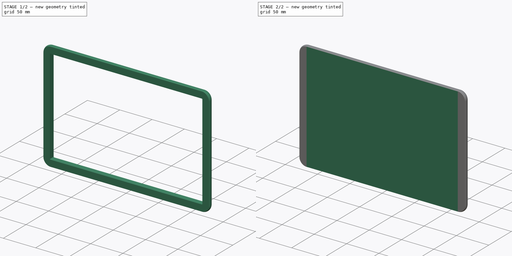
[diagram: build sequence overview — one tinted view per stage of 2, left to right]
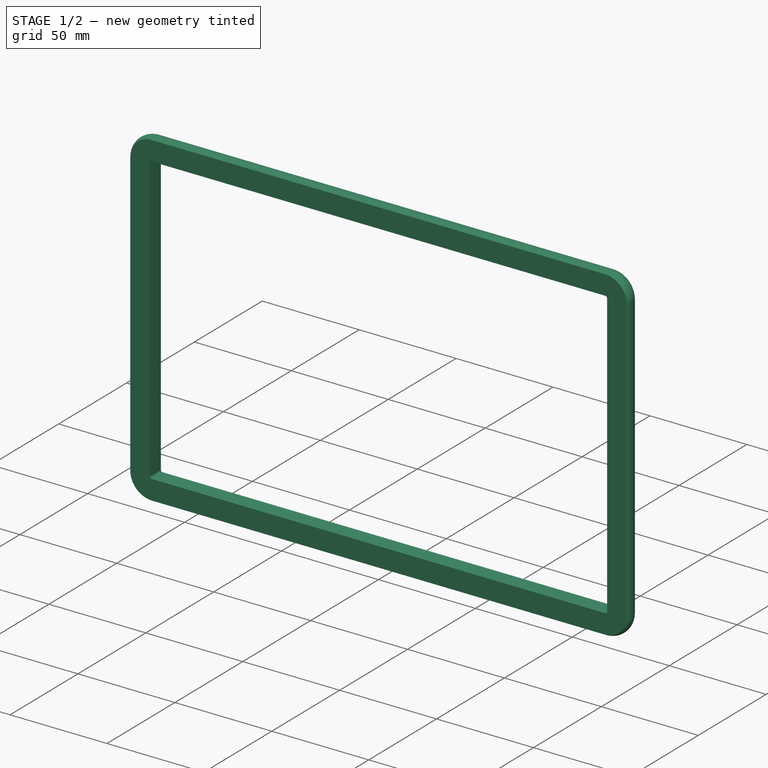
[diagram: stage 1 of 2 — iso view after this stage's code; geometry added in this stage tinted green]
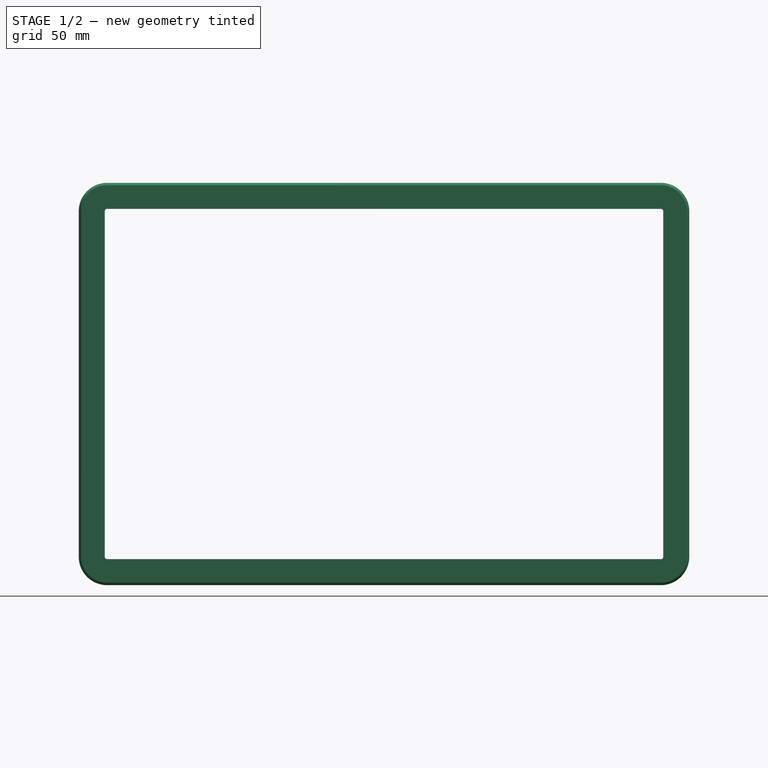
[diagram: stage 1 of 2 — front view after this stage's code; geometry added in this stage tinted green]
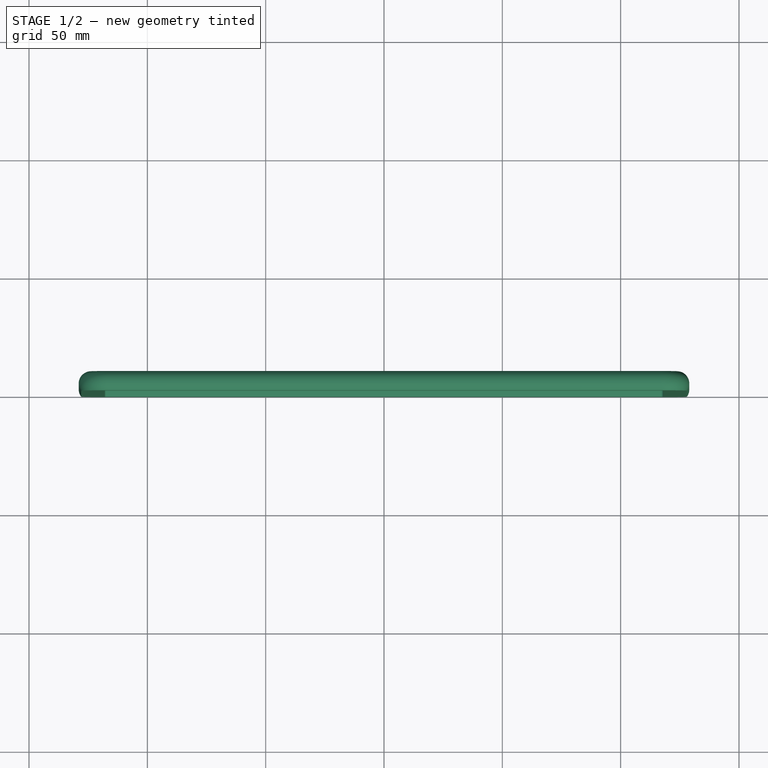
[diagram: stage 1 of 2 — top view after this stage's code; geometry added in this stage tinted green]
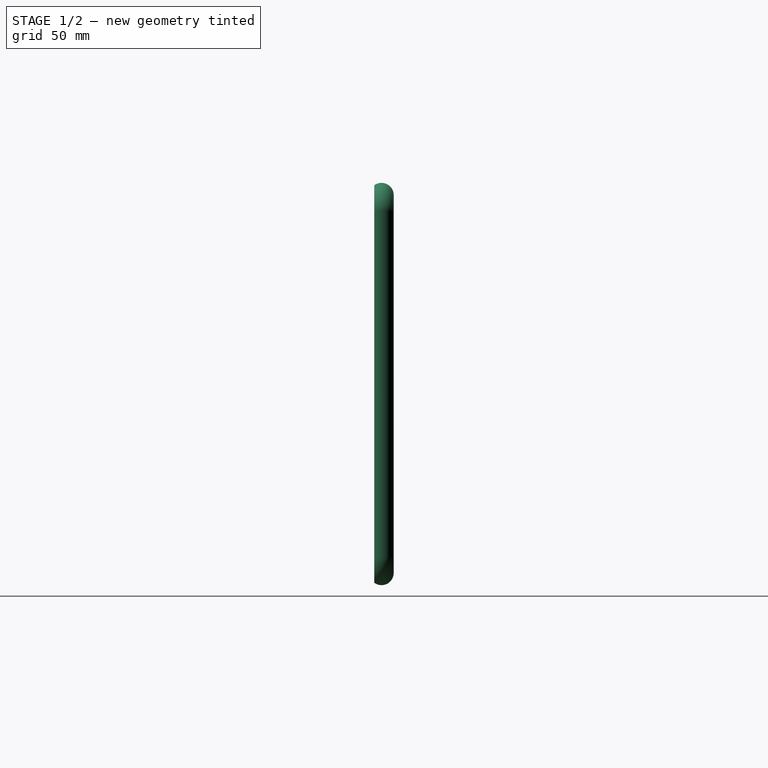
[diagram: stage 1 of 2 — right view after this stage's code; geometry added in this stage tinted green]
FCSTD DOCUMENT  (FreeCAD 0.21R33668 +7 (Git))
Label: pixel-tablet
License: All rights reserved
LicenseURL: http://en.wikipedia.org/wiki/All_rights_reserved
objects: Sketcher::SketchObject×3, PartDesign::Mirrored×2, PartDesign::Body×2, PartDesign::AdditivePipe×1, PartDesign::MultiTransform×1, PartDesign::SubShapeBinder×1, PartDesign::Pad×1, PartDesign::Pocket×1
note: 15 computed .brp shape members not serialized (recipe doc carries the construction recipe); baked Part::Feature solids carry a one-line shape summary decoded from their .brp

FEATURE [Sketcher::SketchObject] Sketch001
  FullyConstrained = true
  MapMode = 5
  Placement = pos=(0,0,0) rot=(1,0,0;1.5708rad)
  Support = -> [XZ_Plane001]
  sketch-geometry (5):
    g0: LineSegment StartX=129 StartY=0 StartZ=0 EndX=129 EndY=73 EndZ=0
    g1: LineSegment StartX=117 StartY=85 StartZ=0 EndX=0 EndY=85 EndZ=0
    g2: ArcOfCircle CenterX=117 CenterY=73 CenterZ=0 NormalX=0 NormalY=0 NormalZ=1 AngleXU=0 Radius=12 StartAngle=0 EndAngle=1.5708
    g3: LineSegment StartX=0 StartY=85 StartZ=0 EndX=0 EndY=0 EndZ=0
    g4: LineSegment StartX=0 StartY=0 StartZ=0 EndX=129 EndY=0 EndZ=0
  constraints (13):
    c: Horizontal(g1)
    c: Vertical(g0)
    c: DistanceX(g-1,g0) = 129
    c: DistanceY(g-1,g1) = 85
    c: Tangent(g1,g2) = -1.5708
    c: Tangent(g0,g2) = -1.5708
    c: Radius(g2) = 12
    c: PointOnObject(g1,g-2)
    c: PointOnObject(g0,g-1)
    c: Coincident(g3,g1)
    c: Coincident(g3,g-1)
    c: Coincident(g4,g3)
    c: Coincident(g4,g0)
FEATURE [Sketcher::SketchObject] Sketch002
  ExternalGeometry = -> [Sketch001]
  FullyConstrained = false
  MapMode = 5
  Support = -> [XY_Plane001]
  sketch-geometry (5):
    g0: ArcOfCircle CenterX=123.85 CenterY=3.04969 CenterZ=0 NormalX=0 NormalY=0 NormalZ=1 AngleXU=0 Radius=5.15031 StartAngle=5.64948 EndAngle=7.85398
    g1: LineSegment StartX=128 StartY=0 StartZ=0 EndX=118 EndY=0 EndZ=0
    g2: LineSegment StartX=118 StartY=0 StartZ=0 EndX=118 EndY=8.2 EndZ=0
    g3: LineSegment StartX=118 StartY=8.2 StartZ=0 EndX=123.85 EndY=8.2 EndZ=0
    g4: LineSegment StartX=129 StartY=8.1e-15 StartZ=0 EndX=129 EndY=8.90351 EndZ=0
  constraints (14):
    c: PointOnObject(g0,g-1)
    c: Coincident(g1,g0)
    c: PointOnObject(g1,g-1)
    c: Coincident(g2,g1)
    c: Vertical(g2)
    c: Coincident(g3,g2)
    c: Horizontal(g3)
    c: Coincident(g4,g-3)
    c: Vertical(g4)
    c: Tangent(g0,g4)
    c: Tangent(g3,g0) = 1.5708
    c: DistanceX(g0,g4) = 1
    c: DistanceY(g0,g0) = 8.2
    c: DistanceX(g1,g1) = 10
FEATURE [PartDesign::AdditivePipe] AdditivePipe
  AuxilleryCurvelinear = true
  AuxillerySpineTangent = false
  Binormal = (0,0,0)
  Mode = 0
  Profile = -> Sketch002
  Spine = -> Sketch001 [Edge1,Edge2,Edge3]
  SpineTangent = false
  Transformation = 0
  Transition = 0
FEATURE [PartDesign::Mirrored] Mirrored001
  MirrorPlane = -> AdditivePipe [Face11]
FEATURE [PartDesign::Mirrored] Mirrored002
  MirrorPlane = -> AdditivePipe [Face1]
FEATURE [PartDesign::MultiTransform] MultiTransform
  BaseFeature = -> AdditivePipe
  Originals = -> [AdditivePipe]
  Refine = true
  Transformations = -> [Mirrored001,Mirrored002]
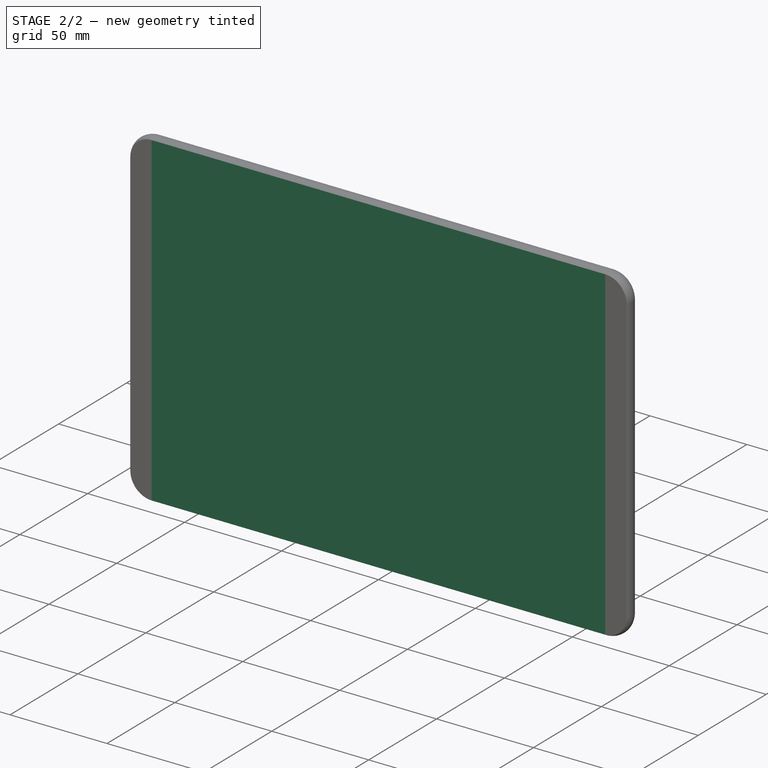
[diagram: stage 2 of 2 — iso view after this stage's code; geometry added in this stage tinted green]
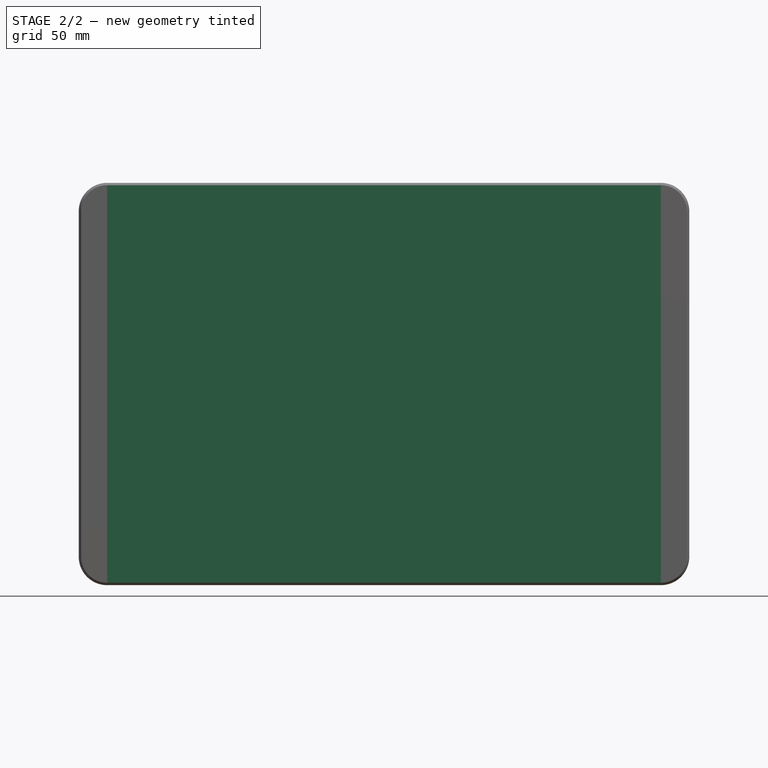
[diagram: stage 2 of 2 — front view after this stage's code; geometry added in this stage tinted green]
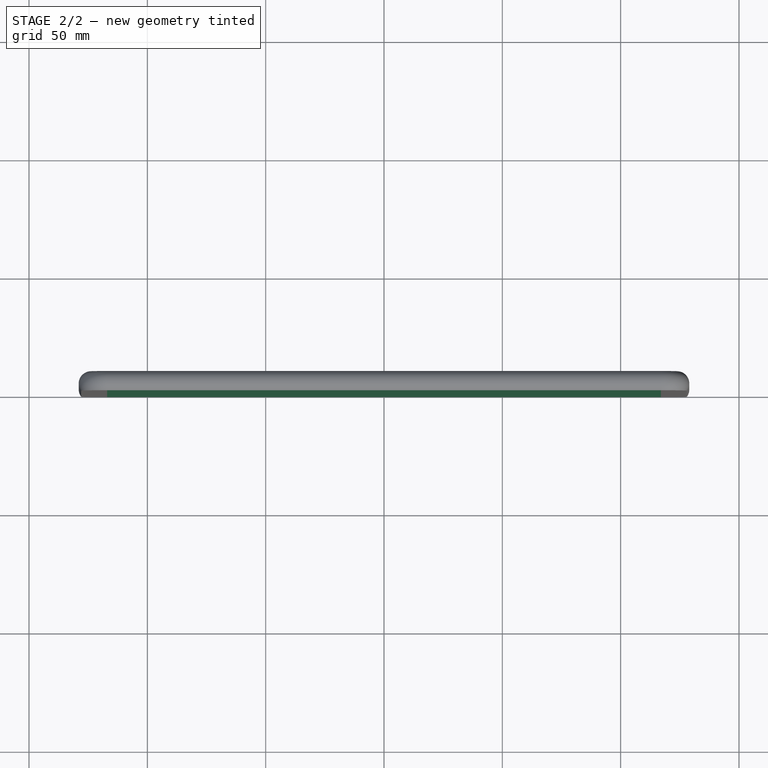
[diagram: stage 2 of 2 — top view after this stage's code; geometry added in this stage tinted green]
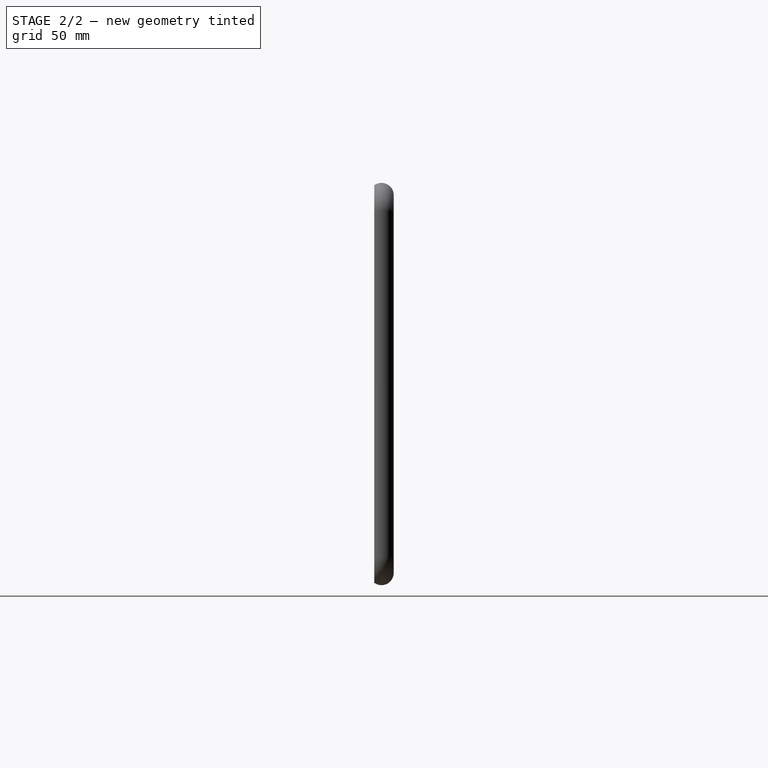
[diagram: stage 2 of 2 — right view after this stage's code; geometry added in this stage tinted green]
FEATURE [PartDesign::SubShapeBinder] Binder
  BindCopyOnChange = 0
  BindMode = 0
  ClaimChildren = false
  Context = -> Body001 [Binder.]
  Fuse = false
  MakeFace = true
  OffsetFill = false
  OffsetIntersection = false
  OffsetJoinType = 0
  OffsetOpenResult = false
  PartialLoad = false
  Relative = true
  Support = -> [MultiTransform[Edge48,Edge29,Edge47,Edge32,Edge46,Edge35,Edge45,Edge38]]
  _Version = 2
FEATURE [PartDesign::Pad] Pad001
  BaseFeature = -> MultiTransform
  Direction = (-2e-16,1,0)
  Length = 10
  Length2 = 10
  Profile = -> Binder [Face1]
  Refine = true
  Reversed = true
  Type = 3
  UpToFace = -> MultiTransform [Face2]
FEATURE [Sketcher::SketchObject] Sketch003
  ExternalGeometry = -> [Pad001]
  FullyConstrained = true
  MapMode = 5
  Placement = pos=(-1.8e-15,8.2,0) rot=(0,0.707107,0.707107;3.14159rad)
  Support = -> [Pad001]
  sketch-geometry (7):
    g0: Circle CenterX=-7.75 CenterY=-60 CenterZ=0 NormalX=0 NormalY=0 NormalZ=1 AngleXU=0 Radius=1
    g1: Circle CenterX=-2.58333 CenterY=-60 CenterZ=0 NormalX=0 NormalY=0 NormalZ=1 AngleXU=0 Radius=1
    g2: Circle CenterX=2.58333 CenterY=-60 CenterZ=0 NormalX=0 NormalY=0 NormalZ=1 AngleXU=0 Radius=1
    g3: Circle CenterX=7.75 CenterY=-60 CenterZ=0 NormalX=0 NormalY=0 NormalZ=1 AngleXU=0 Radius=1
    g4: LineSegment StartX=-7.75 StartY=-60 StartZ=0 EndX=-2.58333 EndY=-60 EndZ=0
    g5: LineSegment StartX=-2.58333 StartY=-60 StartZ=0 EndX=2.58333 EndY=-60 EndZ=0
    g6: LineSegment StartX=2.58333 StartY=-60 StartZ=0 EndX=7.75 EndY=-60 EndZ=0
  constraints (17):
    c: Coincident(g4,g0)
    c: Coincident(g4,g1)
    c: Horizontal(g4)
    c: Coincident(g5,g1)
    c: Coincident(g5,g2)
    c: Coincident(g6,g2)
    c: Coincident(g6,g3)
    c: Horizontal(g6)
    c: Equal(g4,g5)
    c: Equal(g5,g6)
    c: Equal(g3,g2)
    c: Equal(g3,g1)
    c: Equal(g3,g0)
    c: Diameter(g3) = 2
    c: Symmetric(g1,g2,g-2)
    c: DistanceY(g-3,g0) = 25
    c: DistanceX(g0,g3) = 15.5
FEATURE [PartDesign::Pocket] Pocket
  BaseFeature = -> Pad001
  Direction = (2e-16,-1,2e-16)
  Length = 0.2
  Length2 = 5
  Profile = -> Sketch003
  ReferenceAxis = -> Sketch003 [N_Axis]
  Type = 0
FEATURE [PartDesign::Body] Body001  label="Tablet"
  Group = -> [Sketch001,Sketch002,AdditivePipe,MultiTransform,Mirrored001,Mirrored002,Binder,Pad001,Sketch003,Pocket]
  Origin = -> Origin001
  Tip = -> Pocket
FEATURE [PartDesign::Body] Body  label="Base"
  Origin = -> Origin
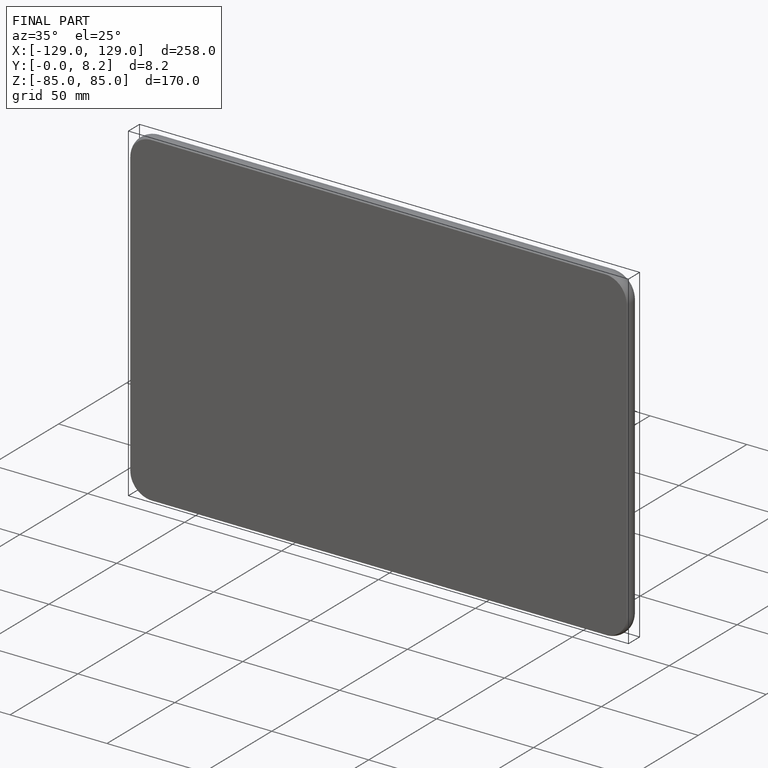
[diagram: finished part — iso view with bounding-box wireframe]
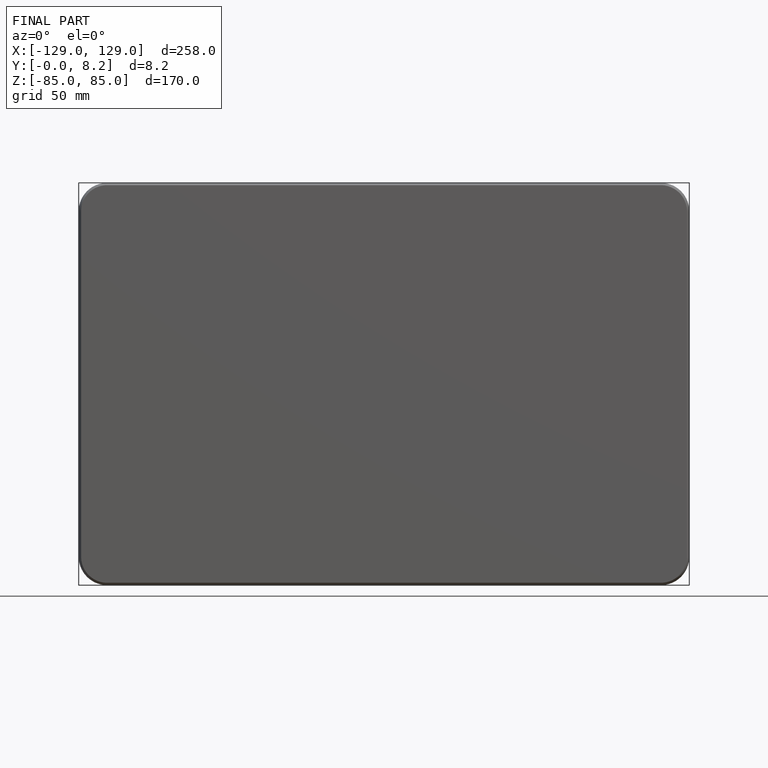
[diagram: finished part — front view with bounding-box wireframe]
